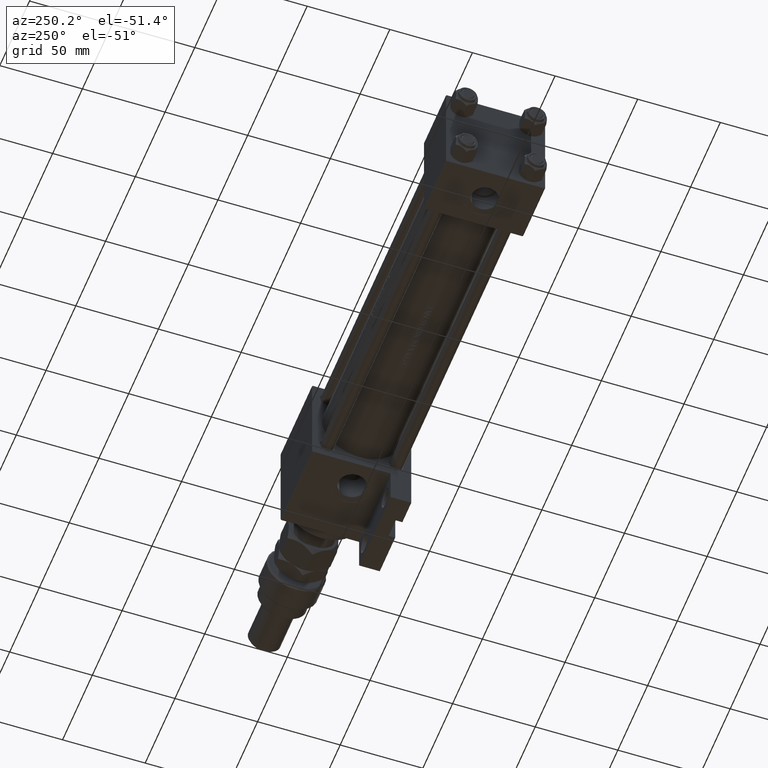
[diagram: clean part render]
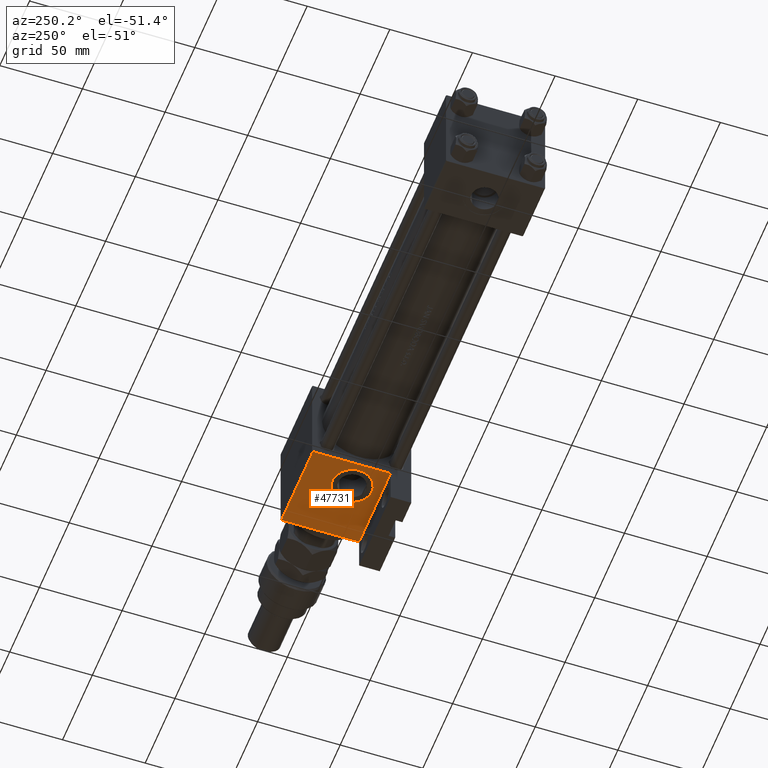
[diagram: same view with one face highlighted and labeled with its STEP entity id]
A machine part, auxiliary view. The second image highlights one B-rep face of the part: STEP entity #47731.
In plain terms, the highlighted planar face has unit normal (0, 0, -1).
Its self-contained STEP definition (entity closure, byte-faithful):
#1810 = EDGE_CURVE ( 'NONE', #16216, #33345, #46898, .T. ) ;
#2483 = ORIENTED_EDGE ( 'NONE', *, *, #16798, .T. ) ;
#4374 = DIRECTION ( 'NONE',  ( -0.000000000000000000, 1.000000000000000000, 0.000000000000000000 ) ) ;
#4918 = FACE_OUTER_BOUND ( 'NONE', #30344, .T. ) ;
#8195 = FACE_BOUND ( 'NONE', #11098, .T. ) ;
#8768 = CARTESIAN_POINT ( 'NONE',  ( 241.0000000000000568, 30.00000000000000000, 0.000000000000000000 ) ) ;
#9194 = VECTOR ( 'NONE', #52955, 1000.000000000000000 ) ;
#11098 = EDGE_LOOP ( 'NONE', ( #19280, #38029 ) ) ;
#11571 = DIRECTION ( 'NONE',  ( 0.000000000000000000, 0.000000000000000000, 1.000000000000000000 ) ) ;
#11754 = CARTESIAN_POINT ( 'NONE',  ( 225.0000000000000000, 30.00000000000000000, 30.00000000000000000 ) ) ;
#16216 = VERTEX_POINT ( 'NONE', #40120 ) ;
#16660 = VERTEX_POINT ( 'NONE', #41111 ) ;
#16798 = EDGE_CURVE ( 'NONE', #35814, #16660, #49525, .T. ) ;
#17687 = DIRECTION ( 'NONE',  ( 0.000000000000000000, -0.000000000000000000, 1.000000000000000000 ) ) ;
#18705 = LINE ( 'NONE', #23039, #42264 ) ;
#19280 = ORIENTED_EDGE ( 'NONE', *, *, #46313, .F. ) ;
#19925 = LINE ( 'NONE', #11754, #9194 ) ;
#20684 = PLANE ( 'NONE',  #42974 ) ;
#22417 = EDGE_CURVE ( 'NONE', #16660, #49073, #34205, .T. ) ;
#23039 = CARTESIAN_POINT ( 'NONE',  ( 225.0000000000000284, 30.00000000000000000, -17.49999999999999645 ) ) ;
#23321 = DIRECTION ( 'NONE',  ( 0.000000000000000000, 0.000000000000000000, -1.000000000000000000 ) ) ;
#27176 = ORIENTED_EDGE ( 'NONE', *, *, #38886, .T. ) ;
#28120 = DIRECTION ( 'NONE',  ( 0.000000000000000000, 1.000000000000000000, 0.000000000000000000 ) ) ;
#29393 = DIRECTION ( 'NONE',  ( 0.000000000000000000, 1.000000000000000000, 0.000000000000000000 ) ) ;
#29413 = VECTOR ( 'NONE', #31065, 1000.000000000000000 ) ;
#30344 = EDGE_LOOP ( 'NONE', ( #49287, #2483, #40433, #27176 ) ) ;
#31065 = DIRECTION ( 'NONE',  ( 1.000000000000000000, 0.000000000000000000, 0.000000000000000000 ) ) ;
#33345 = VERTEX_POINT ( 'NONE', #51207 ) ;
#34205 = LINE ( 'NONE', #39315, #48641 ) ;
#35044 = EDGE_CURVE ( 'NONE', #35814, #37210, #19925, .T. ) ;
#35814 = VERTEX_POINT ( 'NONE', #50392 ) ;
#36819 = CARTESIAN_POINT ( 'NONE',  ( 241.0000000000000568, 30.00000000000000000, 0.000000000000000000 ) ) ;
#37210 = VERTEX_POINT ( 'NONE', #50832 ) ;
#37342 = CARTESIAN_POINT ( 'NONE',  ( 278.0000000000000000, 30.00000000000000000, 29.50000000000000000 ) ) ;
#38029 = ORIENTED_EDGE ( 'NONE', *, *, #1810, .F. ) ;
#38804 = DIRECTION ( 'NONE',  ( 0.000000000000000000, 0.000000000000000000, 1.000000000000000000 ) ) ;
#38886 = EDGE_CURVE ( 'NONE', #49073, #37210, #18705, .T. ) ;
#39315 = CARTESIAN_POINT ( 'NONE',  ( 278.0000000000000000, 30.00000000000000000, 30.00000000000000000 ) ) ;
#40120 = CARTESIAN_POINT ( 'NONE',  ( 241.0000000000000568, 30.00000000000000000, -12.00000000000003197 ) ) ;
#40433 = ORIENTED_EDGE ( 'NONE', *, *, #22417, .T. ) ;
#41111 = CARTESIAN_POINT ( 'NONE',  ( 278.0000000000000000, 30.00000000000000000, 29.50000000000000000 ) ) ;
#41795 = CARTESIAN_POINT ( 'NONE',  ( 278.0000000000000000, 29.99999999999996447, -17.49999999999999645 ) ) ;
#42264 = VECTOR ( 'NONE', #51747, 1000.000000000000000 ) ;
#42343 = CARTESIAN_POINT ( 'NONE',  ( 278.0000000000000000, 30.00000000000000000, 30.00000000000000000 ) ) ;
#42900 = CIRCLE ( 'NONE', #46370, 12.00000000000003197 ) ;
#42974 = AXIS2_PLACEMENT_3D ( 'NONE', #42343, #4374, #17687 ) ;
#44299 = AXIS2_PLACEMENT_3D ( 'NONE', #36819, #28120, #11571 ) ;
#46313 = EDGE_CURVE ( 'NONE', #33345, #16216, #42900, .T. ) ;
#46370 = AXIS2_PLACEMENT_3D ( 'NONE', #8768, #29393, #38804 ) ;
#46898 = CIRCLE ( 'NONE', #44299, 12.00000000000003197 ) ;
#47731 = ADVANCED_FACE ( 'NONE', ( #8195, #4918 ), #20684, .T. ) ;
#48641 = VECTOR ( 'NONE', #23321, 1000.000000000000000 ) ;
#49073 = VERTEX_POINT ( 'NONE', #41795 ) ;
#49287 = ORIENTED_EDGE ( 'NONE', *, *, #35044, .F. ) ;
#49525 = LINE ( 'NONE', #37342, #29413 ) ;
#50392 = CARTESIAN_POINT ( 'NONE',  ( 225.0000000000000000, 30.00000000000000000, 29.50000000000000000 ) ) ;
#50832 = CARTESIAN_POINT ( 'NONE',  ( 225.0000000000000000, 30.00000000000000000, -17.49999999999998224 ) ) ;
#51207 = CARTESIAN_POINT ( 'NONE',  ( 241.0000000000000568, 30.00000000000000000, 12.00000000000003197 ) ) ;
#51747 = DIRECTION ( 'NONE',  ( -1.000000000000000000, 6.546126324440783609E-16, -0.000000000000000000 ) ) ;
#52955 = DIRECTION ( 'NONE',  ( 0.000000000000000000, 0.000000000000000000, -1.000000000000000000 ) ) ;